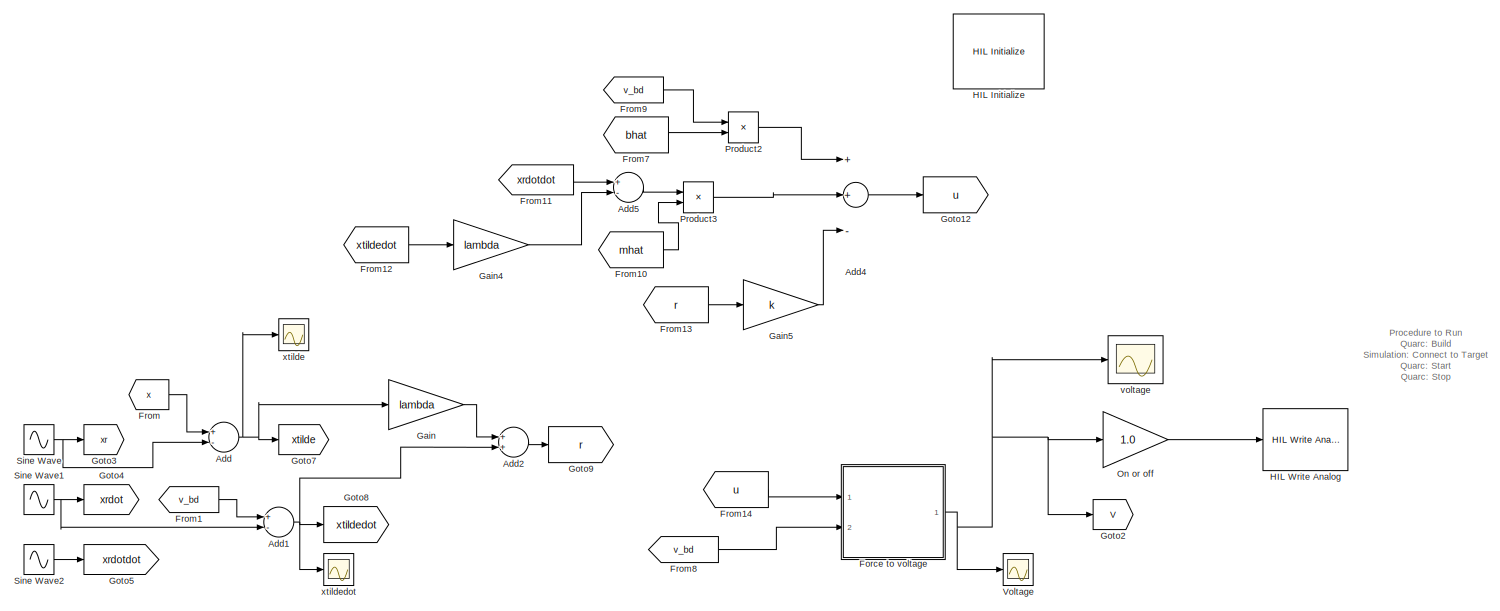
[diagram: root canvas - part 1/2, full width, top band]
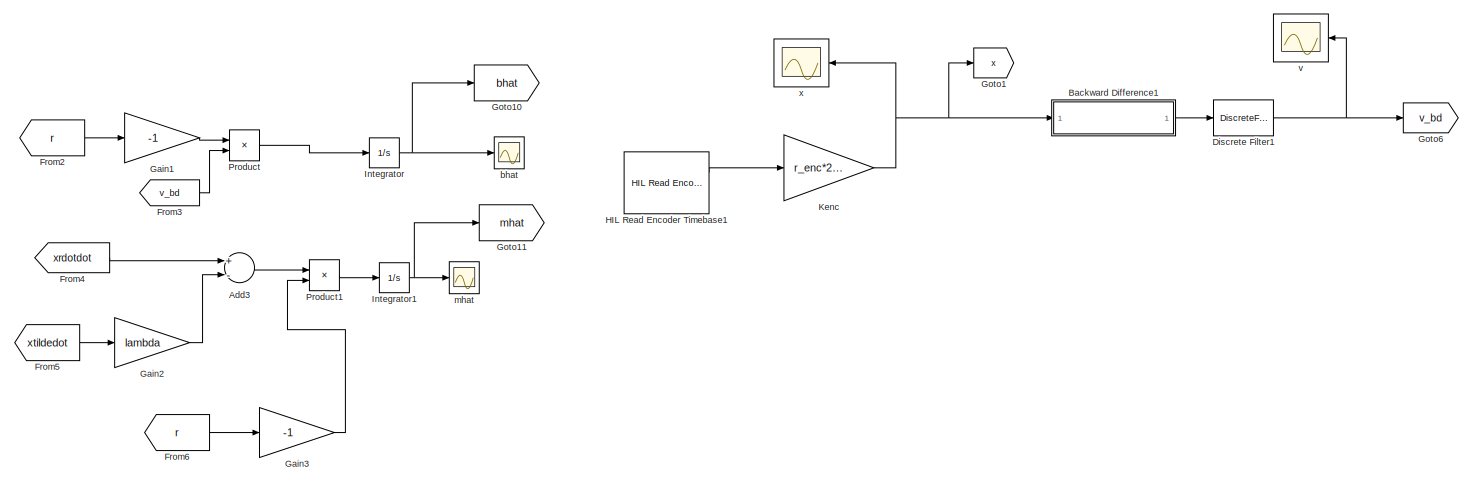
[diagram: root canvas - part 2/2, full width, bottom band]
MODEL slx_5f158c54584e
KIND model
CONFIG AbsTol = auto
CONFIG EnableMultiTasking = off
CONFIG FixedStep = 0.001
CONFIG MaxStep = auto
CONFIG MinStep = auto
CONFIG RelTol = 1e-3
CONFIG SampleTimeConstraint = Unconstrained
CONFIG Solver = ode1
CONFIG SolverName = ode1
CONFIG StartTime = 0.0
CONFIG StopTime = inf
BLOCK [Sum] Add
  InputSameDT = off
  Inputs = +-
  OutDataTypeStr = Inherit: Inherit via internal rule
  Ports = [2, 1]
  SaturateOnIntegerOverflow = off
BLOCK [Sum] Add1
  InputSameDT = off
  Inputs = +-
  OutDataTypeStr = Inherit: Inherit via internal rule
  Ports = [2, 1]
  SaturateOnIntegerOverflow = off
BLOCK [Sum] Add2
  InputSameDT = off
  OutDataTypeStr = Inherit: Inherit via internal rule
  Ports = [2, 1]
  SaturateOnIntegerOverflow = off
BLOCK [Sum] Add3
  InputSameDT = off
  Inputs = +-
  OutDataTypeStr = Inherit: Inherit via internal rule
  Ports = [2, 1]
  SaturateOnIntegerOverflow = off
BLOCK [Sum] Add4
  InputSameDT = off
  Inputs = ++-
  OutDataTypeStr = Inherit: Inherit via internal rule
  Ports = [3, 1]
  SaturateOnIntegerOverflow = off
BLOCK [Sum] Add5
  InputSameDT = off
  Inputs = +-
  OutDataTypeStr = Inherit: Inherit via internal rule
  Ports = [2, 1]
  SaturateOnIntegerOverflow = off
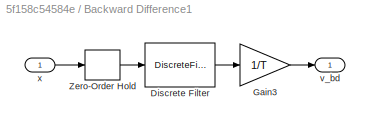
BLOCK [SubSystem] Backward Difference1
  Ports = [1, 1]
  RequestExecContextInheritance = off
BLOCK [DiscreteFilter] Backward Difference1/Discrete Filter
  Denominator = [1  0]
  InputPortMap = u0
  Numerator = [1 -1]
  Ports = [1, 1]
BLOCK [Gain] Backward Difference1/Gain3
  Gain = 1/T
BLOCK [ZeroOrderHold] Backward Difference1/Zero-Order Hold
  SampleTime = T
BLOCK [Outport] Backward Difference1/v_bd
  IconDisplay = Port number
BLOCK [Inport] Backward Difference1/x
  IconDisplay = Port number
BLOCK [DiscreteFilter] Discrete Filter1
  Denominator = af
  InputPortMap = u0
  Numerator = bf
  Ports = [1, 1]
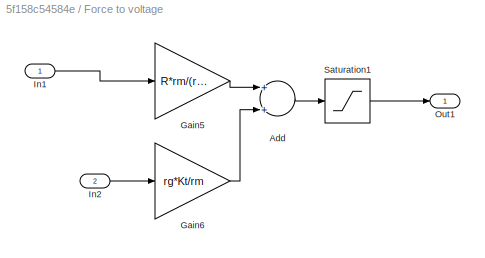
BLOCK [SubSystem] Force to voltage
  Ports = [2, 1]
  RequestExecContextInheritance = off
BLOCK [Sum] Force to voltage/Add
  InputSameDT = off
  OutDataTypeStr = Inherit: Inherit via internal rule
  Ports = [2, 1]
  SaturateOnIntegerOverflow = off
BLOCK [Gain] Force to voltage/Gain5
  Gain = R*rm/(rg*Kt)
BLOCK [Gain] Force to voltage/Gain6
  Gain = rg*Kt/rm
BLOCK [Inport] Force to voltage/In1
  IconDisplay = Port number
BLOCK [Inport] Force to voltage/In2
  IconDisplay = Port number
  Port = 2
BLOCK [Outport] Force to voltage/Out1
  IconDisplay = Port number
  VectorParamsAs1DForOutWhenUnconnected = on
BLOCK [Saturate] Force to voltage/Saturation1
  InputPortMap = u0
  LowerLimit = -Vmax
  Ports = [1, 1]
  UpperLimit = Vmax
BLOCK [From] From
  GotoTag = x
BLOCK [From] From1
  GotoTag = v_bd
BLOCK [From] From10
  GotoTag = mhat
BLOCK [From] From11
  GotoTag = xrdotdot
BLOCK [From] From12
  GotoTag = xtildedot
BLOCK [From] From13
  GotoTag = r
BLOCK [From] From14
  GotoTag = u
BLOCK [From] From2
  GotoTag = r
BLOCK [From] From3
  GotoTag = v_bd
BLOCK [From] From4
  GotoTag = xrdotdot
BLOCK [From] From5
  GotoTag = xtildedot
BLOCK [From] From6
  GotoTag = r
BLOCK [From] From7
  GotoTag = bhat
BLOCK [From] From8
  GotoTag = v_bd
BLOCK [From] From9
  GotoTag = v_bd
BLOCK [Gain] Gain
  Gain = lambda
  OutDataTypeStr = Inherit: Inherit via internal rule
  ParamDataTypeStr = Inherit: Inherit via internal rule
  SaturateOnIntegerOverflow = off
BLOCK [Gain] Gain1
  Gain = -1
  OutDataTypeStr = Inherit: Inherit via internal rule
  ParamDataTypeStr = Inherit: Inherit via internal rule
  SaturateOnIntegerOverflow = off
BLOCK [Gain] Gain2
  Gain = lambda
  OutDataTypeStr = Inherit: Inherit via internal rule
  ParamDataTypeStr = Inherit: Inherit via internal rule
  SaturateOnIntegerOverflow = off
BLOCK [Gain] Gain3
  Gain = -1
  OutDataTypeStr = Inherit: Inherit via internal rule
  ParamDataTypeStr = Inherit: Inherit via internal rule
  SaturateOnIntegerOverflow = off
BLOCK [Gain] Gain4
  Gain = lambda
  OutDataTypeStr = Inherit: Inherit via internal rule
  ParamDataTypeStr = Inherit: Inherit via internal rule
  SaturateOnIntegerOverflow = off
BLOCK [Gain] Gain5
  Gain = k
  OutDataTypeStr = Inherit: Inherit via internal rule
  ParamDataTypeStr = Inherit: Inherit via internal rule
  SaturateOnIntegerOverflow = off
BLOCK [Goto] Goto1
  GotoTag = x
BLOCK [Goto] Goto10
  GotoTag = bhat
BLOCK [Goto] Goto11
  GotoTag = mhat
BLOCK [Goto] Goto12
  GotoTag = u
BLOCK [Goto] Goto2
  GotoTag = V
BLOCK [Goto] Goto3
  GotoTag = xr
BLOCK [Goto] Goto4
  GotoTag = xrdot
BLOCK [Goto] Goto5
  GotoTag = xrdotdot
BLOCK [Goto] Goto6
  GotoTag = v_bd
BLOCK [Goto] Goto7
  GotoTag = xtilde
BLOCK [Goto] Goto8
  GotoTag = xtildedot
BLOCK [Goto] Goto9
  GotoTag = r
BLOCK [Reference] HIL Initialize  REF=quarc_library/Data Acquisition/Generic/Configuration/HIL Initialize
  AttributesFormatString = %<object_name> (%<board_type>-%<board_number>)
  Ports = []
  Priority = -99
  SourceBlock = quarc_library/Data Acquisition/Generic/Configuration/HIL Initialize
  SourceProductName = QUARC Targets
  SourceType = HIL Initialize
  UserDataPersistent = on
BLOCK [Reference] HIL Read Encoder Timebase1  REF=quarc_library/Data Acquisition/Generic/Timebases/HIL Read Encoder
Timebase
  AttributesFormatString = (%<object_name>)
  Ports = [0, 2]
  SourceBlock = quarc_library/Data Acquisition/Generic/Timebases/HIL Read Encoder\nTimebase
  SourceProductName = QUARC Targets
  SourceType = HIL Read Encoder Timebase
  UserDataPersistent = on
BLOCK [Reference] HIL Write Analog  REF=quarc_library/Data Acquisition/Generic/Immediate I//O/HIL Write Analog
  AttributesFormatString = (%<object_name>)
  Ports = [1]
  SourceBlock = quarc_library/Data Acquisition/Generic/Immediate I//O/HIL Write Analog
  SourceProductName = QUARC Targets
  SourceType = HIL Write Analog
  UserDataPersistent = on
BLOCK [Integrator] Integrator
  InitialCondition = bhat0
  Ports = [1, 1]
BLOCK [Integrator] Integrator1
  InitialCondition = mhat0
  Ports = [1, 1]
BLOCK [Gain] Kenc
  Gain = r_enc*2*pi/Nenc
  OutDataTypeStr = Inherit: Inherit via internal rule
  ParamDataTypeStr = Inherit: Inherit via internal rule
  SaturateOnIntegerOverflow = off
BLOCK [Gain] On or off
  Gain = 1.0
  OutDataTypeStr = Inherit: Inherit via internal rule
  ParamDataTypeStr = Inherit: Inherit via internal rule
  SaturateOnIntegerOverflow = off
BLOCK [Product] Product
  InputSameDT = off
  OutDataTypeStr = Inherit: Inherit via internal rule
  Ports = [2, 1]
  RndMeth = Floor
  SaturateOnIntegerOverflow = off
BLOCK [Product] Product1
  InputSameDT = off
  OutDataTypeStr = Inherit: Inherit via internal rule
  Ports = [2, 1]
  RndMeth = Floor
  SaturateOnIntegerOverflow = off
BLOCK [Product] Product2
  InputSameDT = off
  OutDataTypeStr = Inherit: Inherit via internal rule
  Ports = [2, 1]
  RndMeth = Floor
  SaturateOnIntegerOverflow = off
BLOCK [Product] Product3
  InputSameDT = off
  OutDataTypeStr = Inherit: Inherit via internal rule
  Ports = [2, 1]
  RndMeth = Floor
  SaturateOnIntegerOverflow = off
BLOCK [Sin] Sine Wave
  Amplitude = A0
  Frequency = omega
  Phase = phi
  Ports = [0, 1]
  SampleTime = 0
BLOCK [Sin] Sine Wave1
  Amplitude = A0*omega
  Frequency = omega
  Phase = phi + pi/2
  Ports = [0, 1]
  SampleTime = 0
BLOCK [Sin] Sine Wave2
  Amplitude = -A0*omega*omega
  Frequency = omega
  Phase = phi
  Ports = [0, 1]
  SampleTime = 0
BLOCK [Scope] Voltage
  Floating = off
  NumInputPorts = 1
  Ports = [1]
  ScopeSpecificationString = Simulink.scopes.TimeScopeBlockCfg('CurrentConfiguration', extmgr.ConfigurationSet(extmgr.Configuration('Core','General UI',true,'FigureColor',[0.501960784313725 0.501960784313725 0.501960784313725]),extmgr.Configuration('Core','Source UI',true),extmgr.Configuration('Sources','WiredSimulink',true,'DataLoggingSaveFormat','StructureWithTime','DataLoggingDecimation','1','DataLoggingDecimateData',true,...<+2691ch>
BLOCK [Scope] bhat
  Floating = off
  NumInputPorts = 1
  Ports = [1]
  ScopeSpecificationString = Simulink.scopes.TimeScopeBlockCfg('CurrentConfiguration', extmgr.ConfigurationSet(extmgr.Configuration('Core','General UI',true,'FigureColor',[0.501960784313725 0.501960784313725 0.501960784313725]),extmgr.Configuration('Core','Source UI',true),extmgr.Configuration('Sources','WiredSimulink',true,'DataLoggingSaveFormat','StructureWithTime','DataLoggingDecimation','1','DataLoggingDecimateData',true,...<+2694ch>
BLOCK [Scope] mhat
  Floating = off
  NumInputPorts = 1
  Ports = [1]
  ScopeSpecificationString = Simulink.scopes.TimeScopeBlockCfg('CurrentConfiguration', extmgr.ConfigurationSet(extmgr.Configuration('Core','General UI',true,'FigureColor',[0.501960784313725 0.501960784313725 0.501960784313725]),extmgr.Configuration('Core','Source UI',true),extmgr.Configuration('Sources','WiredSimulink',true,'DataLoggingSaveFormat','StructureWithTime','DataLoggingDecimation','1','DataLoggingDecimateData',true,...<+2698ch>
BLOCK [Scope] v
  Floating = off
  NumInputPorts = 1
  Ports = [1]
  ScopeSpecificationString = Simulink.scopes.TimeScopeBlockCfg('CurrentConfiguration', extmgr.ConfigurationSet(extmgr.Configuration('Core','General UI',true,'FigureColor',[0.501960784313725 0.501960784313725 0.501960784313725]),extmgr.Configuration('Core','Source UI',true),extmgr.Configuration('Sources','WiredSimulink',true,'DataLoggingVariableName','ScopeData4','DataLoggingSaveFormat','Array','DataLoggingDecimation','1','Dat...<+2198ch>
BLOCK [Scope] voltage
  Floating = off
  NumInputPorts = 1
  Ports = [1]
  ScopeSpecificationString = Simulink.scopes.TimeScopeBlockCfg('CurrentConfiguration', extmgr.ConfigurationSet(extmgr.Configuration('Core','General UI',true,'FigureColor',[0.501960784313725 0.501960784313725 0.501960784313725]),extmgr.Configuration('Core','Source UI',true),extmgr.Configuration('Sources','WiredSimulink',true,'DataLoggingSaveFormat','Array','DataLoggingDecimation','1','DataLoggingDecimateData',true,'DataLogging...<+2811ch>
BLOCK [Scope] x
  Floating = off
  NumInputPorts = 1
  Ports = [1]
  ScopeSpecificationString = Simulink.scopes.TimeScopeBlockCfg('CurrentConfiguration', extmgr.ConfigurationSet(extmgr.Configuration('Core','General UI',true,'FigureColor',[0.501960784313725 0.501960784313725 0.501960784313725]),extmgr.Configuration('Core','Source UI',true),extmgr.Configuration('Sources','WiredSimulink',true,'DataLoggingSaveFormat','Array','DataLoggingDecimation','1','DataLoggingDecimateData',true),extmgr.Conf...<+2900ch>
BLOCK [Scope] xtilde
  Floating = off
  NumInputPorts = 1
  Ports = [1]
  ScopeSpecificationString = Simulink.scopes.TimeScopeBlockCfg('CurrentConfiguration', extmgr.ConfigurationSet(extmgr.Configuration('Core','General UI',true,'FigureColor',[0.501960784313725 0.501960784313725 0.501960784313725]),extmgr.Configuration('Core','Source UI',true),extmgr.Configuration('Sources','WiredSimulink',true,'DataLoggingSaveFormat','StructureWithTime','DataLoggingDecimation','1','DataLoggingDecimateData',true,...<+2958ch>
BLOCK [Scope] xtildedot
  Floating = off
  NumInputPorts = 1
  Ports = [1]
  ScopeSpecificationString = Simulink.scopes.TimeScopeBlockCfg('CurrentConfiguration', extmgr.ConfigurationSet(extmgr.Configuration('Core','General UI',true,'FigureColor',[0.501960784313725 0.501960784313725 0.501960784313725]),extmgr.Configuration('Core','Source UI',true),extmgr.Configuration('Sources','WiredSimulink',true,'DataLoggingSaveFormat','StructureWithTime','DataLoggingDecimation','1','DataLoggingDecimateData',true,...<+2962ch>
ANNOTATION (root): Procedure to Run Quarc: Build Simulation: Connect to Target Quarc: Start Quarc: Stop
NET Add1:1 -> Add2:2, Goto8:1, xtildedot:1
LINE Add2:1 -> Goto9:1
LINE Add3:1 -> Product1:1
LINE Add4:1 -> Goto12:1
LINE Add5:1 -> Product3:1
NET Add:1 -> Gain:1, Goto7:1, xtilde:1
LINE Backward Difference1/Discrete Filter:1 -> Backward Difference1/Gain3:1
LINE Backward Difference1/Gain3:1 -> Backward Difference1/v_bd:1
LINE Backward Difference1/Zero-Order Hold:1 -> Backward Difference1/Discrete Filter:1
LINE Backward Difference1/x:1 -> Backward Difference1/Zero-Order Hold:1
LINE Backward Difference1:1 -> Discrete Filter1:1
NET Discrete Filter1:1 -> Goto6:1, v:1
LINE Force to voltage/Add:1 -> Force to voltage/Saturation1:1
LINE Force to voltage/Gain5:1 -> Force to voltage/Add:1
LINE Force to voltage/Gain6:1 -> Force to voltage/Add:2
LINE Force to voltage/In1:1 -> Force to voltage/Gain5:1
LINE Force to voltage/In2:1 -> Force to voltage/Gain6:1
LINE Force to voltage/Saturation1:1 -> Force to voltage/Out1:1
NET Force to voltage:1 -> Goto2:1, On or off:1, Voltage:1, voltage:1
LINE From10:1 -> Product3:2
LINE From11:1 -> Add5:1
LINE From12:1 -> Gain4:1
LINE From13:1 -> Gain5:1
LINE From14:1 -> Force to voltage:1
LINE From1:1 -> Add1:1
LINE From2:1 -> Gain1:1
LINE From3:1 -> Product:2
LINE From4:1 -> Add3:1
LINE From5:1 -> Gain2:1
LINE From6:1 -> Gain3:1
LINE From7:1 -> Product2:2
LINE From8:1 -> Force to voltage:2
LINE From9:1 -> Product2:1
LINE From:1 -> Add:1
LINE Gain1:1 -> Product:1
LINE Gain2:1 -> Add3:2
LINE Gain3:1 -> Product1:2
LINE Gain4:1 -> Add5:2
LINE Gain5:1 -> Add4:3
LINE Gain:1 -> Add2:1
LINE HIL Read Encoder Timebase1:1 -> Kenc:1
NET Integrator1:1 -> Goto11:1, mhat:1
NET Integrator:1 -> Goto10:1, bhat:1
NET Kenc:1 -> Backward Difference1:1, Goto1:1, x:1
LINE On or off:1 -> HIL Write Analog:1
LINE Product1:1 -> Integrator1:1
LINE Product2:1 -> Add4:1
LINE Product3:1 -> Add4:2
LINE Product:1 -> Integrator:1
NET Sine Wave1:1 -> Add1:2, Goto4:1
LINE Sine Wave2:1 -> Goto5:1
NET Sine Wave:1 -> Add:2, Goto3:1
note: NET lines group one-source signal fan-out (src -> all destinations, sorted); 1:1 wires keep LINE
